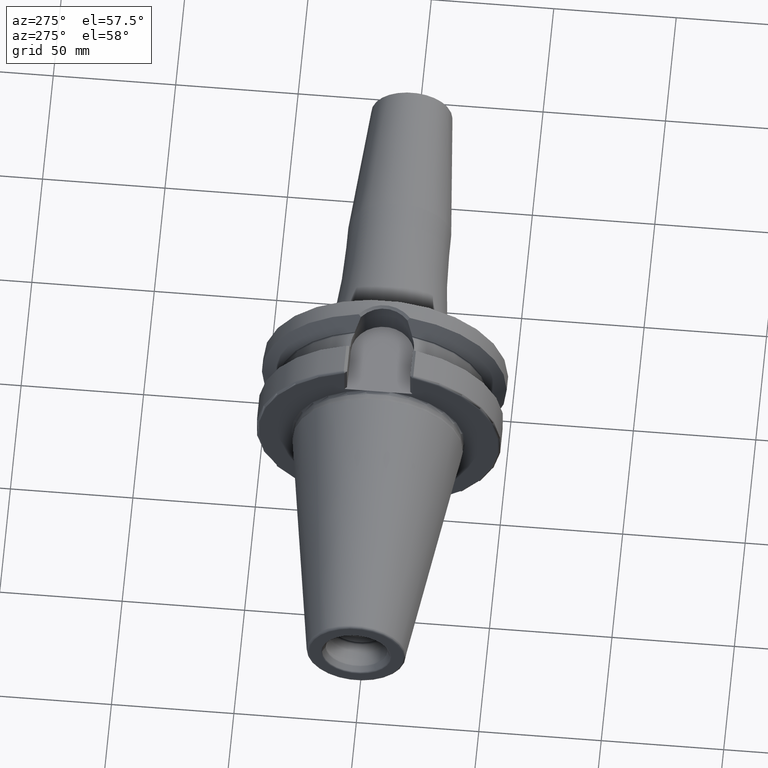
[diagram: clean part render]
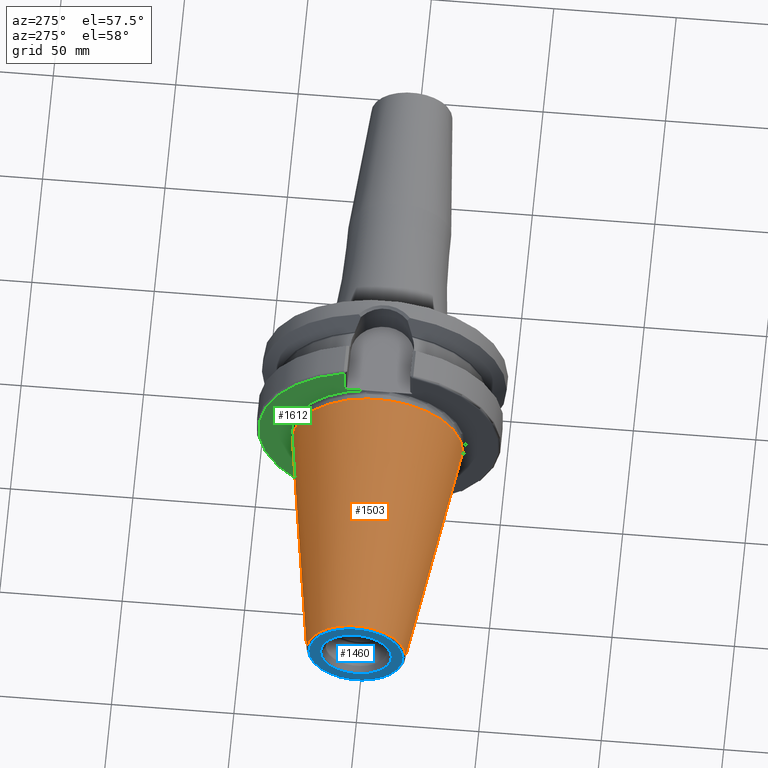
[diagram: same view with three faces highlighted in distinct colors, each labeled with its STEP entity id]
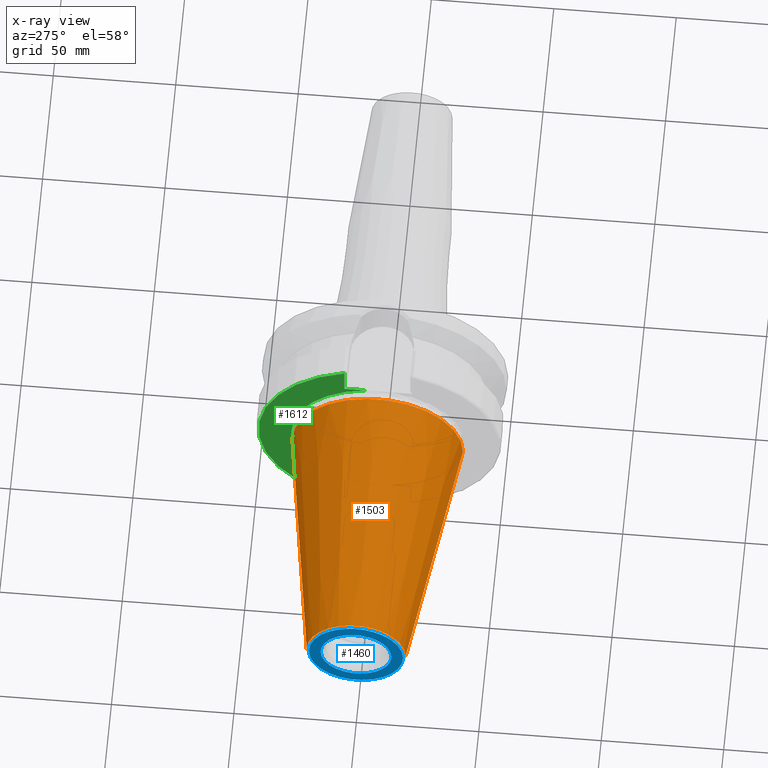
[diagram: x-ray of the same camera — body ghosted, the three highlighted faces saturated]
A machine part, auxiliary view with three faces highlighted in distinct colors.
The next image is the same camera in x-ray (body ghosted, the three faces saturated) — at least one of them is partly hidden behind the body in this view.
Their STEP definitions:

[orange] entity #1503 — the highlighted conical surface has half-angle 8.298 deg.
#37=CARTESIAN_POINT('',(-1.009443186692E2,0.E0,0.E0));
#38=DIRECTION('',(1.E0,0.E0,0.E0));
#39=DIRECTION('',(0.E0,1.E0,0.E0));
#40=AXIS2_PLACEMENT_3D('',#37,#38,#39);
#42=CARTESIAN_POINT('',(-6.191906162850E-1,0.E0,0.E0));
#43=DIRECTION('',(1.E0,0.E0,0.E0));
#44=DIRECTION('',(0.E0,1.E0,0.E0));
#45=AXIS2_PLACEMENT_3D('',#42,#43,#44);
#47=DIRECTION('',(-9.895312636440E-1,-1.443186691705E-1,0.E0));
#48=VECTOR('',#47,1.013865167670E2);
#49=CARTESIAN_POINT('',(-6.191906162849E-1,3.483469384295E1,0.E0));
#50=LINE('',#49,#48);
#51=DIRECTION('',(-9.895312636440E-1,1.443186691705E-1,0.E0));
#52=VECTOR('',#51,1.013865167670E2);
#53=CARTESIAN_POINT('',(-6.191906162849E-1,-3.483469384295E1,0.E0));
#54=LINE('',#53,#52);
#1188=CARTESIAN_POINT('',(-1.009443186692E2,2.020272667130E1,0.E0));
#1190=VERTEX_POINT('',#1188);
#1192=CARTESIAN_POINT('',(-1.009443186692E2,-2.020272667130E1,0.E0));
#1194=VERTEX_POINT('',#1192);
#1407=CARTESIAN_POINT('',(-6.191906162849E-1,3.483469384295E1,0.E0));
#1408=VERTEX_POINT('',#1407);
#1409=CARTESIAN_POINT('',(-6.191906162849E-1,-3.483469384295E1,0.E0));
#1410=VERTEX_POINT('',#1409);
#1489=CARTESIAN_POINT('',(-5.078175464273E1,0.E0,0.E0));
#1490=DIRECTION('',(1.E0,0.E0,0.E0));
#1491=DIRECTION('',(0.E0,-1.E0,0.E0));
#1492=AXIS2_PLACEMENT_3D('',#1489,#1490,#1491);
#1493=CONICAL_SURFACE('',#1492,2.751871025712E1,8.297826828206E0);
#1495=ORIENTED_EDGE('',*,*,#1494,.F.);
#1497=ORIENTED_EDGE('',*,*,#1496,.T.);
#1499=ORIENTED_EDGE('',*,*,#1498,.T.);
#1500=ORIENTED_EDGE('',*,*,#1482,.F.);
#1501=EDGE_LOOP('',(#1495,#1497,#1499,#1500));
#1502=FACE_OUTER_BOUND('',#1501,.F.);
#1503=ADVANCED_FACE('',(#1502),#1493,.T.);
#41=CIRCLE('',#40,2.020272667130E1);
#46=CIRCLE('',#45,3.483469384295E1);
#1482=EDGE_CURVE('',#1190,#1194,#41,.T.);
#1494=EDGE_CURVE('',#1408,#1190,#50,.T.);
#1496=EDGE_CURVE('',#1408,#1410,#46,.T.);
#1498=EDGE_CURVE('',#1410,#1194,#54,.T.);

[blue] entity #1460 — the highlighted planar face has unit normal (1, 0, 0).
#2=CARTESIAN_POINT('',(-1.018E2,0.E0,0.E0));
#3=DIRECTION('',(-1.E0,0.E0,0.E0));
#4=DIRECTION('',(0.E0,1.E0,0.E0));
#5=AXIS2_PLACEMENT_3D('',#2,#3,#4);
#7=CARTESIAN_POINT('',(-1.018E2,0.E0,0.E0));
#8=DIRECTION('',(1.E0,0.E0,0.E0));
#9=DIRECTION('',(0.E0,1.E0,0.E0));
#10=AXIS2_PLACEMENT_3D('',#7,#8,#9);
#12=CARTESIAN_POINT('',(-1.018E2,0.E0,0.E0));
#13=DIRECTION('',(1.E0,0.E0,0.E0));
#14=DIRECTION('',(0.E0,1.E0,0.E0));
#15=AXIS2_PLACEMENT_3D('',#12,#13,#14);
#17=CARTESIAN_POINT('',(-1.018E2,0.E0,0.E0));
#18=DIRECTION('',(1.E0,0.E0,0.E0));
#19=DIRECTION('',(0.E0,-1.E0,0.E0));
#20=AXIS2_PLACEMENT_3D('',#17,#18,#19);
#1189=CARTESIAN_POINT('',(-1.018E2,1.921319540766E1,0.E0));
#1191=VERTEX_POINT('',#1189);
#1193=CARTESIAN_POINT('',(-1.018E2,-1.921319540766E1,0.E0));
#1195=VERTEX_POINT('',#1193);
#1318=CARTESIAN_POINT('',(-1.018E2,1.446188021535E1,0.E0));
#1319=CARTESIAN_POINT('',(-1.018E2,-1.446188021535E1,0.E0));
#1320=VERTEX_POINT('',#1318);
#1321=VERTEX_POINT('',#1319);
#1443=CARTESIAN_POINT('',(-1.018E2,0.E0,0.E0));
#1444=DIRECTION('',(1.E0,0.E0,0.E0));
#1445=DIRECTION('',(0.E0,-1.E0,0.E0));
#1446=AXIS2_PLACEMENT_3D('',#1443,#1444,#1445);
#1447=PLANE('',#1446);
#1449=ORIENTED_EDGE('',*,*,#1448,.F.);
#1451=ORIENTED_EDGE('',*,*,#1450,.T.);
#1452=EDGE_LOOP('',(#1449,#1451));
#1453=FACE_OUTER_BOUND('',#1452,.F.);
#1455=ORIENTED_EDGE('',*,*,#1454,.F.);
#1457=ORIENTED_EDGE('',*,*,#1456,.F.);
#1458=EDGE_LOOP('',(#1455,#1457));
#1459=FACE_BOUND('',#1458,.F.);
#1460=ADVANCED_FACE('',(#1453,#1459),#1447,.F.);
#6=CIRCLE('',#5,1.921319540766E1);
#11=CIRCLE('',#10,1.921319540766E1);
#16=CIRCLE('',#15,1.446188021535E1);
#21=CIRCLE('',#20,1.446188021535E1);
#1448=EDGE_CURVE('',#1191,#1195,#6,.T.);
#1450=EDGE_CURVE('',#1191,#1195,#11,.T.);
#1454=EDGE_CURVE('',#1320,#1321,#16,.T.);
#1456=EDGE_CURVE('',#1321,#1320,#21,.T.);

[green] entity #1612 — the highlighted planar face has unit normal (1, 0, 0).
#96=CARTESIAN_POINT('',(3.E0,0.E0,0.E0));
#97=DIRECTION('',(-1.E0,0.E0,0.E0));
#98=DIRECTION('',(0.E0,1.E0,0.E0));
#99=AXIS2_PLACEMENT_3D('',#96,#97,#98);
#127=DIRECTION('',(5.798787724366E-7,5.799135248072E-7,9.999999999997E-1));
#128=VECTOR('',#127,1.177335004622E1);
#129=CARTESIAN_POINT('',(2.999993172884E0,1.390249317248E1,-4.697335004621E1));
#130=LINE('',#129,#128);
#131=DIRECTION('',(-1.226013541637E-6,-1.226161370240E-6,9.999999999985E-1));
#132=VECTOR('',#131,1.177335390080E1);
#133=CARTESIAN_POINT('',(3.E0,1.39025E1,3.52E1));
#134=LINE('',#133,#132);
#588=CARTESIAN_POINT('',(3.E0,0.E0,0.E0));
#589=DIRECTION('',(-1.E0,0.E0,0.E0));
#590=DIRECTION('',(0.E0,2.837969049058E-1,9.588844126201E-1));
#591=AXIS2_PLACEMENT_3D('',#588,#589,#590);
#683=DIRECTION('',(0.E0,1.E0,0.E0));
#684=VECTOR('',#683,8.750740591798E0);
#685=CARTESIAN_POINT('',(3.E0,5.151759408202E0,3.52E1));
#686=LINE('',#685,#684);
#704=CARTESIAN_POINT('',(3.E0,0.E0,0.E0));
#705=DIRECTION('',(1.E0,0.E0,0.E0));
#706=DIRECTION('',(0.E0,1.E0,0.E0));
#707=AXIS2_PLACEMENT_3D('',#704,#705,#706);
#741=DIRECTION('',(0.E0,-1.E0,0.E0));
#742=VECTOR('',#741,8.750740591798E0);
#743=CARTESIAN_POINT('',(3.E0,1.39025E1,-3.52E1));
#744=LINE('',#743,#742);
#1260=CARTESIAN_POINT('',(3.E0,3.5575E1,0.E0));
#1262=VERTEX_POINT('',#1260);
#1330=CARTESIAN_POINT('',(3.E0,5.151759408202E0,3.52E1));
#1331=VERTEX_POINT('',#1330);
#1338=CARTESIAN_POINT('',(3.E0,5.151759408202E0,-3.52E1));
#1339=VERTEX_POINT('',#1338);
#1376=CARTESIAN_POINT('',(3.E0,1.390251954398E1,4.697334463905E1));
#1378=VERTEX_POINT('',#1376);
#1380=CARTESIAN_POINT('',(3.E0,1.39025E1,3.52E1));
#1381=VERTEX_POINT('',#1380);
#1390=CARTESIAN_POINT('',(2.999993172884E0,1.390249317248E1,-4.697335004621E1));
#1391=CARTESIAN_POINT('',(3.E0,1.39025E1,-3.52E1));
#1392=VERTEX_POINT('',#1390);
#1393=VERTEX_POINT('',#1391);
#1592=CARTESIAN_POINT('',(3.E0,0.E0,0.E0));
#1593=DIRECTION('',(1.E0,0.E0,0.E0));
#1594=DIRECTION('',(0.E0,-1.E0,0.E0));
#1595=AXIS2_PLACEMENT_3D('',#1592,#1593,#1594);
#1596=PLANE('',#1595);
#1598=ORIENTED_EDGE('',*,*,#1597,.F.);
#1600=ORIENTED_EDGE('',*,*,#1599,.F.);
#1602=ORIENTED_EDGE('',*,*,#1601,.F.);
#1604=ORIENTED_EDGE('',*,*,#1603,.F.);
#1606=ORIENTED_EDGE('',*,*,#1605,.F.);
#1607=ORIENTED_EDGE('',*,*,#1578,.T.);
#1609=ORIENTED_EDGE('',*,*,#1608,.F.);
#1610=EDGE_LOOP('',(#1598,#1600,#1602,#1604,#1606,#1607,#1609));
#1611=FACE_OUTER_BOUND('',#1610,.F.);
#1612=ADVANCED_FACE('',(#1611),#1596,.F.);
#100=CIRCLE('',#99,3.5575E1);
#592=CIRCLE('',#591,4.89875E1);
#708=CIRCLE('',#707,3.5575E1);
#1578=EDGE_CURVE('',#1262,#1339,#100,.T.);
#1597=EDGE_CURVE('',#1392,#1393,#130,.T.);
#1599=EDGE_CURVE('',#1378,#1392,#592,.T.);
#1601=EDGE_CURVE('',#1381,#1378,#134,.T.);
#1603=EDGE_CURVE('',#1331,#1381,#686,.T.);
#1605=EDGE_CURVE('',#1262,#1331,#708,.T.);
#1608=EDGE_CURVE('',#1393,#1339,#744,.T.);